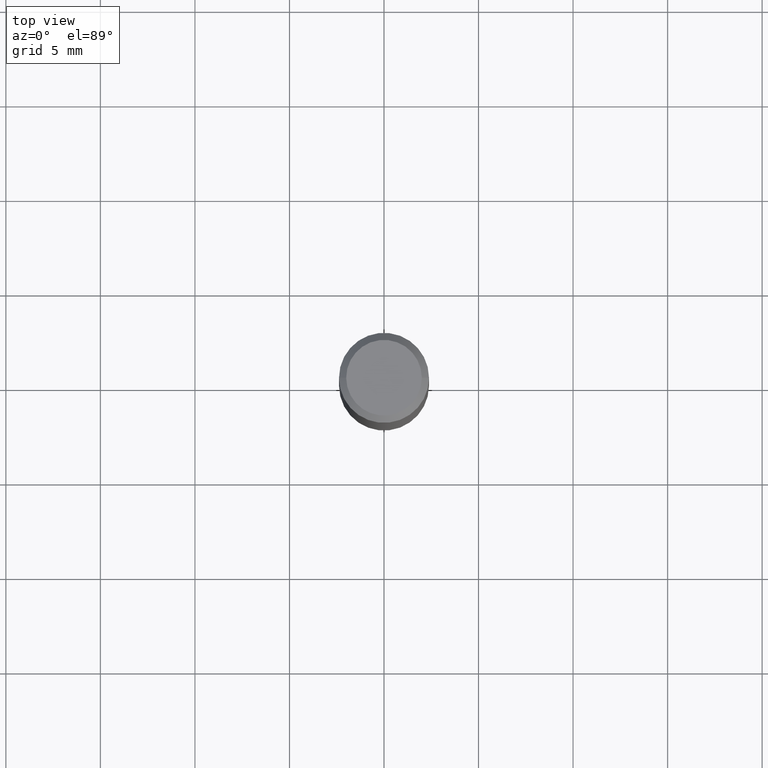
[diagram: clean part render]
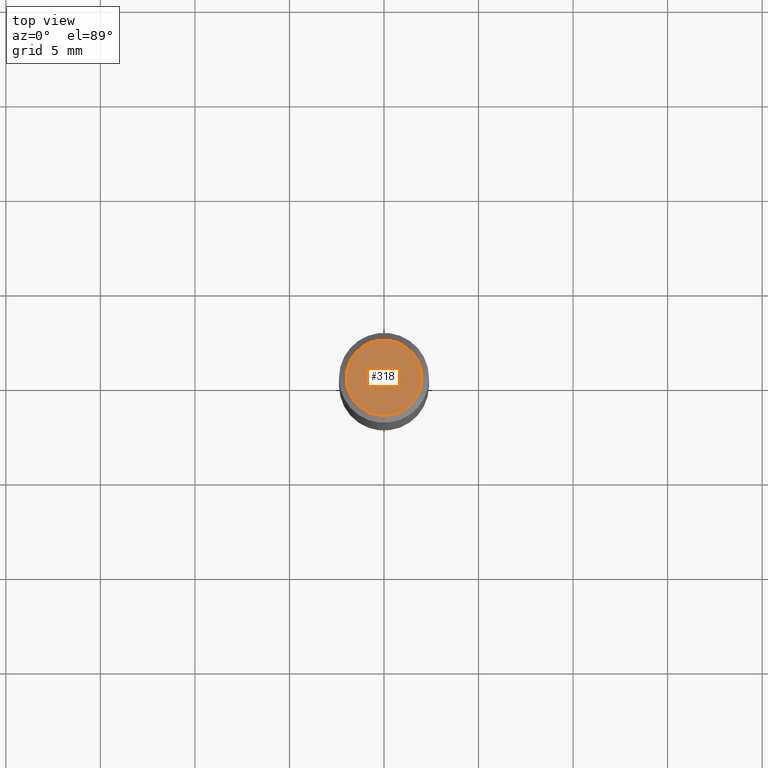
[diagram: same view with one face highlighted and labeled with its STEP entity id]
A machine part, top view. The second image highlights one B-rep face of the part: STEP entity #318.
In plain terms, the highlighted planar face has unit normal (0, -0, -1).
Its self-contained STEP definition (entity closure, byte-faithful):
#10 = VERTEX_POINT ( 'NONE', #403 ) ;
#14 = AXIS2_PLACEMENT_3D ( 'NONE', #380, #65, #184 ) ;
#42 = EDGE_LOOP ( 'NONE', ( #326, #229 ) ) ;
#45 = EDGE_CURVE ( 'NONE', #295, #10, #104, .T. ) ;
#65 = DIRECTION ( 'NONE',  ( -2.445468806185136597E-29, 3.491481338843145583E-15, 1.000000000000000000 ) ) ;
#90 = AXIS2_PLACEMENT_3D ( 'NONE', #142, #344, #95 ) ;
#95 = DIRECTION ( 'NONE',  ( -1.000000000000000000, 6.982962677686265922E-15, -4.876176775795935793E-29 ) ) ;
#101 = CARTESIAN_POINT ( 'NONE',  ( -0.07875000000000001443, 5.760944209091169839E-16, 1.724453912998643423E-17 ) ) ;
#104 = CIRCLE ( 'NONE', #287, 0.07875000000000001443 ) ;
#142 = CARTESIAN_POINT ( 'NONE',  ( 5.499083108677934443E-16, 0.07875000000000001443, -2.663318858689025652E-16 ) ) ;
#172 = CIRCLE ( 'NONE', #14, 0.07875000000000001443 ) ;
#184 = DIRECTION ( 'NONE',  ( 1.000000000000000000, -6.982962677686267499E-15, 4.876807983162778740E-29 ) ) ;
#229 = ORIENTED_EDGE ( 'NONE', *, *, #330, .T. ) ;
#287 = AXIS2_PLACEMENT_3D ( 'NONE', #359, #328, #304 ) ;
#295 = VERTEX_POINT ( 'NONE', #101 ) ;
#304 = DIRECTION ( 'NONE',  ( 1.000000000000000000, -6.982962677686267499E-15, 4.876807983162778740E-29 ) ) ;
#309 = FACE_OUTER_BOUND ( 'NONE', #42, .T. ) ;
#318 = ADVANCED_FACE ( 'NONE', ( #309 ), #342, .F. ) ;
#326 = ORIENTED_EDGE ( 'NONE', *, *, #45, .T. ) ;
#328 = DIRECTION ( 'NONE',  ( -2.445468806185136597E-29, 3.491481338843145583E-15, 1.000000000000000000 ) ) ;
#330 = EDGE_CURVE ( 'NONE', #10, #295, #172, .T. ) ;
#342 = PLANE ( 'NONE',  #90 ) ;
#344 = DIRECTION ( 'NONE',  ( 2.438088387897960049E-29, -3.491481338843145188E-15, -1.000000000000000000 ) ) ;
#359 = CARTESIAN_POINT ( 'NONE',  ( -4.217098251943042903E-46, 6.020898656931179793E-32, 1.724453912999037237E-17 ) ) ;
#380 = CARTESIAN_POINT ( 'NONE',  ( -4.217098251943042903E-46, 6.020898656931179793E-32, 1.724453912999037237E-17 ) ) ;
#403 = CARTESIAN_POINT ( 'NONE',  ( 0.07875000000000001443, -6.179040623491182236E-16, 1.724453912999445534E-17 ) ) ;